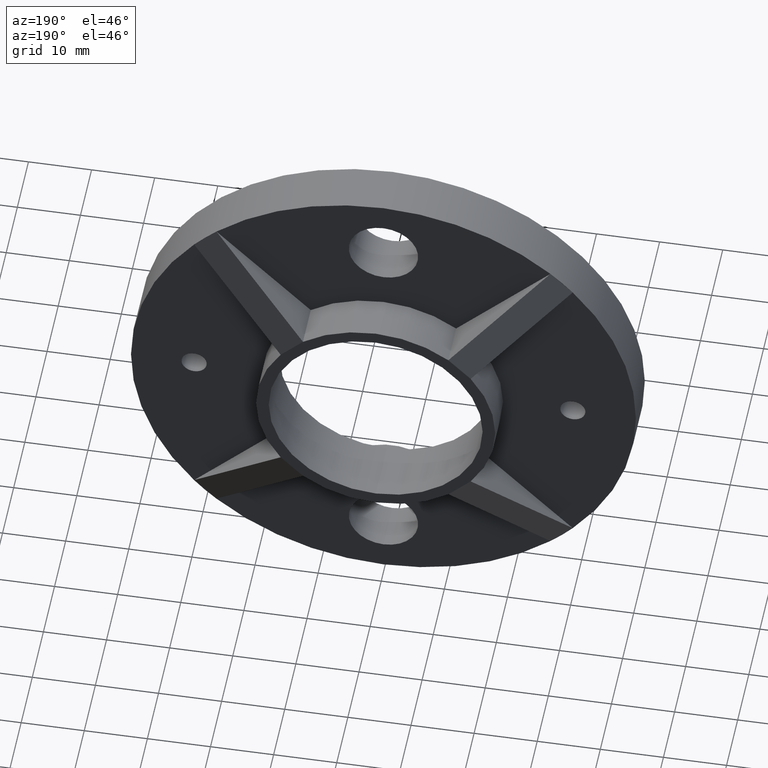
[diagram: clean part render]
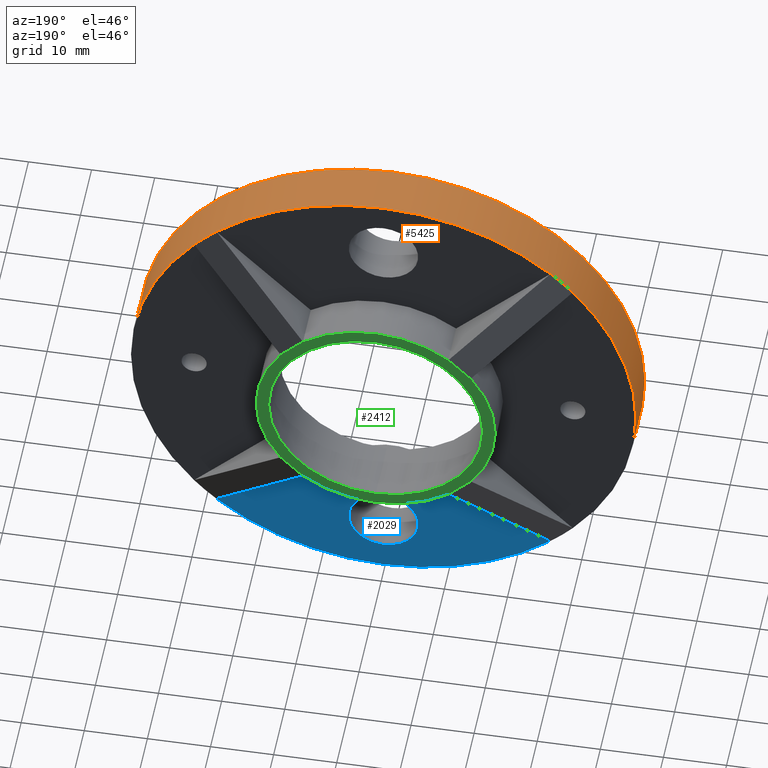
[diagram: same view with three faces highlighted in distinct colors, each labeled with its STEP entity id]
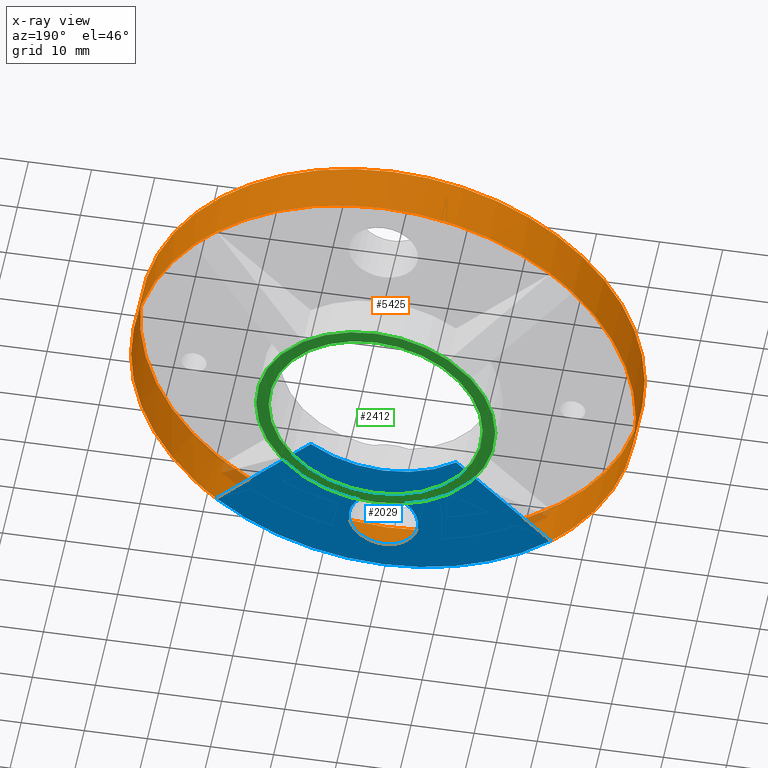
[diagram: x-ray of the same camera — body ghosted, the three highlighted faces saturated]
A machine part, auxiliary view with three faces highlighted in distinct colors.
The next image is the same camera in x-ray (body ghosted, the three faces saturated) — at least one of them is partly hidden behind the body in this view.
Their STEP definitions:

[orange] entity #5425 — the highlighted cylindrical surface (bore or boss wall) has radius 40 mm, axis along (-0, -1, -0).
#100 = CIRCLE ( 'NONE', #11590, 40.00000000000000000 ) ;
#220 = ORIENTED_EDGE ( 'NONE', *, *, #2755, .F. ) ;
#299 = CIRCLE ( 'NONE', #854, 40.00000000000000000 ) ;
#854 = AXIS2_PLACEMENT_3D ( 'NONE', #8414, #2530, #9510 ) ;
#877 = VERTEX_POINT ( 'NONE', #3703 ) ;
#975 = CARTESIAN_POINT ( 'NONE',  ( 0.000000000000000000, 8.000000000000000000, 0.000000000000000000 ) ) ;
#1010 = VERTEX_POINT ( 'NONE', #6023 ) ;
#1297 = CARTESIAN_POINT ( 'NONE',  ( 29.99674142955686307, 8.000000000000000000, -26.46120752362421769 ) ) ;
#1462 = VERTEX_POINT ( 'NONE', #3976 ) ;
#1779 = EDGE_CURVE ( 'NONE', #1908, #1908, #299, .T. ) ;
#1881 = EDGE_CURVE ( 'NONE', #2505, #8396, #2156, .T. ) ;
#1908 = VERTEX_POINT ( 'NONE', #9143 ) ;
#2156 =( BOUNDED_CURVE ( )  B_SPLINE_CURVE ( 3, ( #2717, #3768, #3683, #2835 ),
 .UNSPECIFIED., .F., .T. ) 
 B_SPLINE_CURVE_WITH_KNOTS ( ( 4, 4 ),
 ( 3.079051891793301188, 3.204133415386284600 ),
 .UNSPECIFIED. ) 
 CURVE ( )  GEOMETRIC_REPRESENTATION_ITEM ( )  RATIONAL_B_SPLINE_CURVE ( ( 1.000000000000000000, 0.9986966426113046413, 0.9986966426113046413, 1.000000000000000000 ) ) 
 REPRESENTATION_ITEM ( '' )  );
#2331 = CARTESIAN_POINT ( 'NONE',  ( -26.46120752362419637, 8.000000000000000000, 29.99674142955685952 ) ) ;
#2505 = VERTEX_POINT ( 'NONE', #7922 ) ;
#2530 = DIRECTION ( 'NONE',  ( 0.000000000000000000, 1.000000000000000000, 0.000000000000000000 ) ) ;
#2534 = ORIENTED_EDGE ( 'NONE', *, *, #1881, .T. ) ;
#2717 = CARTESIAN_POINT ( 'NONE',  ( 29.99674142955688438, 8.000000000000000000, 26.46120752362420703 ) ) ;
#2755 = EDGE_CURVE ( 'NONE', #2505, #6810, #10702, .T. ) ;
#2835 = CARTESIAN_POINT ( 'NONE',  ( 26.46120752362411466, 8.000000000000000000, 29.99674142955695544 ) ) ;
#2977 = AXIS2_PLACEMENT_3D ( 'NONE', #975, #5722, #6765 ) ;
#3145 = AXIS2_PLACEMENT_3D ( 'NONE', #10557, #10464, #9385 ) ;
#3371 = CARTESIAN_POINT ( 'NONE',  ( -28.89275222358375927, 8.027616196780574143, 27.71270289559584654 ) ) ;
#3372 = CARTESIAN_POINT ( 'NONE',  ( -29.99674142955688438, 8.000000000000000000, -26.46120752362420347 ) ) ;
#3683 = CARTESIAN_POINT ( 'NONE',  ( 27.71270289559563693, 8.027616196780570590, 28.89275222358396178 ) ) ;
#3703 = CARTESIAN_POINT ( 'NONE',  ( -26.46120752362411466, 8.000000000000000000, -29.99674142955695544 ) ) ;
#3768 = CARTESIAN_POINT ( 'NONE',  ( 28.89275222358388007, 8.027616196780570590, 27.71270289559572220 ) ) ;
#3976 = CARTESIAN_POINT ( 'NONE',  ( -29.99674142955667833, 8.000000000000000000, 26.46120752362442730 ) ) ;
#4112 = EDGE_CURVE ( 'NONE', #1010, #6810, #12604, .T. ) ;
#4175 = CARTESIAN_POINT ( 'NONE',  ( -28.89275222358388007, 8.027616196780570590, -27.71270289559572220 ) ) ;
#4224 = CARTESIAN_POINT ( 'NONE',  ( -27.71270289559563693, 8.027616196780570590, -28.89275222358396178 ) ) ;
#4364 = EDGE_LOOP ( 'NONE', ( #8021, #4639, #9854, #6468, #4366, #5451, #220, #2534 ) ) ;
#4366 = ORIENTED_EDGE ( 'NONE', *, *, #7232, .F. ) ;
#4420 =( BOUNDED_CURVE ( )  B_SPLINE_CURVE ( 3, ( #3372, #4175, #4224, #11083 ),
 .UNSPECIFIED., .F., .T. ) 
 B_SPLINE_CURVE_WITH_KNOTS ( ( 4, 4 ),
 ( 3.079051891793301188, 3.204133415386284600 ),
 .UNSPECIFIED. ) 
 CURVE ( )  GEOMETRIC_REPRESENTATION_ITEM ( )  RATIONAL_B_SPLINE_CURVE ( ( 1.000000000000000000, 0.9986966426113046413, 0.9986966426113046413, 1.000000000000000000 ) ) 
 REPRESENTATION_ITEM ( '' )  );
#4639 = ORIENTED_EDGE ( 'NONE', *, *, #7504, .T. ) ;
#5299 = FACE_OUTER_BOUND ( 'NONE', #4364, .T. ) ;
#5363 =( BOUNDED_CURVE ( )  B_SPLINE_CURVE ( 3, ( #12141, #9292, #3371, #12100 ),
 .UNSPECIFIED., .F., .F. ) 
 B_SPLINE_CURVE_WITH_KNOTS ( ( 4, 4 ),
 ( 3.079051891793311402, 3.204133415386284156 ),
 .UNSPECIFIED. ) 
 CURVE ( )  GEOMETRIC_REPRESENTATION_ITEM ( )  RATIONAL_B_SPLINE_CURVE ( ( 1.000000000000000000, 0.9986966426113048634, 0.9986966426113048634, 1.000000000000000000 ) ) 
 REPRESENTATION_ITEM ( '' )  );
#5425 = ADVANCED_FACE ( 'NONE', ( #5299, #12679 ), #7489, .T. ) ;
#5451 = ORIENTED_EDGE ( 'NONE', *, *, #4112, .T. ) ;
#5456 = CARTESIAN_POINT ( 'NONE',  ( 0.000000000000000000, 8.000000000000000000, 0.000000000000000000 ) ) ;
#5722 = DIRECTION ( 'NONE',  ( -0.000000000000000000, -1.000000000000000000, -0.000000000000000000 ) ) ;
#5992 = AXIS2_PLACEMENT_3D ( 'NONE', #5456, #10351, #6357 ) ;
#6023 = CARTESIAN_POINT ( 'NONE',  ( 26.46120752362420347, 8.000000000000000000, -29.99674142955687373 ) ) ;
#6125 = DIRECTION ( 'NONE',  ( 0.000000000000000000, 1.000000000000000000, 0.000000000000000000 ) ) ;
#6356 = DIRECTION ( 'NONE',  ( 0.000000000000000000, 0.000000000000000000, 1.000000000000000000 ) ) ;
#6357 = DIRECTION ( 'NONE',  ( 0.000000000000000000, 0.000000000000000000, 1.000000000000000000 ) ) ;
#6468 = ORIENTED_EDGE ( 'NONE', *, *, #11245, .T. ) ;
#6552 = VERTEX_POINT ( 'NONE', #2331 ) ;
#6734 = EDGE_CURVE ( 'NONE', #6552, #8396, #100, .T. ) ;
#6765 = DIRECTION ( 'NONE',  ( 0.000000000000000000, 0.000000000000000000, -1.000000000000000000 ) ) ;
#6810 = VERTEX_POINT ( 'NONE', #7916 ) ;
#7232 = EDGE_CURVE ( 'NONE', #1010, #877, #7914, .T. ) ;
#7271 = CIRCLE ( 'NONE', #5992, 40.00000000000000000 ) ;
#7351 = DIRECTION ( 'NONE',  ( 0.000000000000000000, 1.000000000000000000, 0.000000000000000000 ) ) ;
#7489 = CYLINDRICAL_SURFACE ( 'NONE', #2977, 40.00000000000000000 ) ;
#7504 = EDGE_CURVE ( 'NONE', #6552, #1462, #5363, .T. ) ;
#7868 = CARTESIAN_POINT ( 'NONE',  ( 26.46120752362411466, 8.000000000000000000, 29.99674142955695544 ) ) ;
#7914 = CIRCLE ( 'NONE', #3145, 40.00000000000000000 ) ;
#7916 = CARTESIAN_POINT ( 'NONE',  ( 29.99674142955686307, 8.000000000000000000, -26.46120752362421769 ) ) ;
#7922 = CARTESIAN_POINT ( 'NONE',  ( 29.99674142955688438, 8.000000000000000000, 26.46120752362420703 ) ) ;
#7957 = CARTESIAN_POINT ( 'NONE',  ( 27.71270289559568312, 8.027616196780574143, -28.89275222358391915 ) ) ;
#8009 = EDGE_CURVE ( 'NONE', #9907, #1462, #7271, .T. ) ;
#8021 = ORIENTED_EDGE ( 'NONE', *, *, #6734, .F. ) ;
#8348 = CARTESIAN_POINT ( 'NONE',  ( 0.000000000000000000, 8.000000000000000000, 0.000000000000000000 ) ) ;
#8396 = VERTEX_POINT ( 'NONE', #7868 ) ;
#8414 = CARTESIAN_POINT ( 'NONE',  ( 0.000000000000000000, 0.000000000000000000, 0.000000000000000000 ) ) ;
#8747 = CARTESIAN_POINT ( 'NONE',  ( -29.99674142955688438, 8.000000000000000000, -26.46120752362420347 ) ) ;
#8970 = AXIS2_PLACEMENT_3D ( 'NONE', #11987, #6125, #10247 ) ;
#9143 = CARTESIAN_POINT ( 'NONE',  ( 0.000000000000000000, 0.000000000000000000, 40.00000000000000000 ) ) ;
#9292 = CARTESIAN_POINT ( 'NONE',  ( -27.71270289559561206, 8.027616196780575919, 28.89275222358398665 ) ) ;
#9385 = DIRECTION ( 'NONE',  ( 0.000000000000000000, 0.000000000000000000, 1.000000000000000000 ) ) ;
#9510 = DIRECTION ( 'NONE',  ( 0.000000000000000000, 0.000000000000000000, 1.000000000000000000 ) ) ;
#9733 = EDGE_LOOP ( 'NONE', ( #10171 ) ) ;
#9854 = ORIENTED_EDGE ( 'NONE', *, *, #8009, .F. ) ;
#9907 = VERTEX_POINT ( 'NONE', #8747 ) ;
#10171 = ORIENTED_EDGE ( 'NONE', *, *, #1779, .T. ) ;
#10247 = DIRECTION ( 'NONE',  ( 0.000000000000000000, 0.000000000000000000, 1.000000000000000000 ) ) ;
#10351 = DIRECTION ( 'NONE',  ( 0.000000000000000000, 1.000000000000000000, 0.000000000000000000 ) ) ;
#10464 = DIRECTION ( 'NONE',  ( 0.000000000000000000, 1.000000000000000000, 0.000000000000000000 ) ) ;
#10557 = CARTESIAN_POINT ( 'NONE',  ( 0.000000000000000000, 8.000000000000000000, 0.000000000000000000 ) ) ;
#10702 = CIRCLE ( 'NONE', #8970, 40.00000000000000000 ) ;
#10989 = CARTESIAN_POINT ( 'NONE',  ( 28.89275222358389428, 8.027616196780572366, -27.71270289559571154 ) ) ;
#11083 = CARTESIAN_POINT ( 'NONE',  ( -26.46120752362411466, 8.000000000000000000, -29.99674142955695544 ) ) ;
#11245 = EDGE_CURVE ( 'NONE', #9907, #877, #4420, .T. ) ;
#11590 = AXIS2_PLACEMENT_3D ( 'NONE', #8348, #7351, #6356 ) ;
#11787 = CARTESIAN_POINT ( 'NONE',  ( 26.46120752362420347, 8.000000000000000000, -29.99674142955687373 ) ) ;
#11987 = CARTESIAN_POINT ( 'NONE',  ( 0.000000000000000000, 8.000000000000000000, 0.000000000000000000 ) ) ;
#12100 = CARTESIAN_POINT ( 'NONE',  ( -29.99674142955667833, 8.000000000000000000, 26.46120752362442730 ) ) ;
#12141 = CARTESIAN_POINT ( 'NONE',  ( -26.46120752362419637, 8.000000000000000000, 29.99674142955685952 ) ) ;
#12604 =( BOUNDED_CURVE ( )  B_SPLINE_CURVE ( 3, ( #11787, #7957, #10989, #1297 ),
 .UNSPECIFIED., .F., .T. ) 
 B_SPLINE_CURVE_WITH_KNOTS ( ( 4, 4 ),
 ( 3.079051891793304296, 3.204133415386284156 ),
 .UNSPECIFIED. ) 
 CURVE ( )  GEOMETRIC_REPRESENTATION_ITEM ( )  RATIONAL_B_SPLINE_CURVE ( ( 1.000000000000000000, 0.9986966426113046413, 0.9986966426113046413, 1.000000000000000000 ) ) 
 REPRESENTATION_ITEM ( '' )  );
#12679 = FACE_OUTER_BOUND ( 'NONE', #9733, .T. ) ;

[blue] entity #2029 — the highlighted planar face has unit normal (0, 1, 0).
#287 = FACE_BOUND ( 'NONE', #9694, .T. ) ;
#688 = AXIS2_PLACEMENT_3D ( 'NONE', #11972, #11856, #10919 ) ;
#824 = DIRECTION ( 'NONE',  ( 0.000000000000000000, -0.000000000000000000, 1.000000000000000000 ) ) ;
#877 = VERTEX_POINT ( 'NONE', #3703 ) ;
#1010 = VERTEX_POINT ( 'NONE', #6023 ) ;
#1079 = DIRECTION ( 'NONE',  ( 0.000000000000000000, 1.000000000000000000, -0.000000000000000000 ) ) ;
#1440 = DIRECTION ( 'NONE',  ( -0.7071067811865465735, 0.000000000000000000, -0.7071067811865483499 ) ) ;
#1443 = ORIENTED_EDGE ( 'NONE', *, *, #7232, .T. ) ;
#1524 = EDGE_CURVE ( 'NONE', #12620, #12620, #7362, .T. ) ;
#1812 = LINE ( 'NONE', #10745, #10680 ) ;
#1922 = AXIS2_PLACEMENT_3D ( 'NONE', #4715, #6643, #824 ) ;
#2029 = ADVANCED_FACE ( 'NONE', ( #287, #8283 ), #8675, .T. ) ;
#2250 = CARTESIAN_POINT ( 'NONE',  ( 11.51478739474855040, 8.000000000000000000, -15.05032130068124907 ) ) ;
#2299 = EDGE_CURVE ( 'NONE', #6353, #877, #2606, .T. ) ;
#2606 = LINE ( 'NONE', #7259, #10088 ) ;
#2660 = EDGE_LOOP ( 'NONE', ( #10759, #10211, #1443, #10485 ) ) ;
#3145 = AXIS2_PLACEMENT_3D ( 'NONE', #10557, #10464, #9385 ) ;
#3703 = CARTESIAN_POINT ( 'NONE',  ( -26.46120752362411466, 8.000000000000000000, -29.99674142955695544 ) ) ;
#3773 = CIRCLE ( 'NONE', #688, 18.95000000000000284 ) ;
#4715 = CARTESIAN_POINT ( 'NONE',  ( 0.000000000000000000, 8.000000000000000000, 0.000000000000000000 ) ) ;
#5010 = CARTESIAN_POINT ( 'NONE',  ( 0.000000000000000000, 8.000000000000000000, -30.00000000000000000 ) ) ;
#6023 = CARTESIAN_POINT ( 'NONE',  ( 26.46120752362420347, 8.000000000000000000, -29.99674142955687373 ) ) ;
#6353 = VERTEX_POINT ( 'NONE', #9484 ) ;
#6643 = DIRECTION ( 'NONE',  ( 0.000000000000000000, 1.000000000000000000, 0.000000000000000000 ) ) ;
#6823 = DIRECTION ( 'NONE',  ( -0.7071067811865482389, -0.000000000000000000, 0.7071067811865469066 ) ) ;
#7232 = EDGE_CURVE ( 'NONE', #1010, #877, #7914, .T. ) ;
#7259 = CARTESIAN_POINT ( 'NONE',  ( -11.51478739474850777, 8.000000000000000000, -15.05032130068127927 ) ) ;
#7362 = CIRCLE ( 'NONE', #9631, 5.499999999999998224 ) ;
#7914 = CIRCLE ( 'NONE', #3145, 40.00000000000000000 ) ;
#8164 = CARTESIAN_POINT ( 'NONE',  ( 0.000000000000000000, 8.000000000000000000, -35.50000000000000000 ) ) ;
#8283 = FACE_OUTER_BOUND ( 'NONE', #2660, .T. ) ;
#8472 = VERTEX_POINT ( 'NONE', #2250 ) ;
#8675 = PLANE ( 'NONE',  #1922 ) ;
#9305 = EDGE_CURVE ( 'NONE', #1010, #8472, #1812, .T. ) ;
#9385 = DIRECTION ( 'NONE',  ( 0.000000000000000000, 0.000000000000000000, 1.000000000000000000 ) ) ;
#9484 = CARTESIAN_POINT ( 'NONE',  ( -11.51478739474850777, 8.000000000000000000, -15.05032130068127927 ) ) ;
#9631 = AXIS2_PLACEMENT_3D ( 'NONE', #5010, #1079, #10009 ) ;
#9694 = EDGE_LOOP ( 'NONE', ( #9978 ) ) ;
#9978 = ORIENTED_EDGE ( 'NONE', *, *, #1524, .F. ) ;
#10009 = DIRECTION ( 'NONE',  ( 0.000000000000000000, 0.000000000000000000, -1.000000000000000000 ) ) ;
#10088 = VECTOR ( 'NONE', #1440, 1000.000000000000114 ) ;
#10211 = ORIENTED_EDGE ( 'NONE', *, *, #9305, .F. ) ;
#10464 = DIRECTION ( 'NONE',  ( 0.000000000000000000, 1.000000000000000000, 0.000000000000000000 ) ) ;
#10485 = ORIENTED_EDGE ( 'NONE', *, *, #2299, .F. ) ;
#10557 = CARTESIAN_POINT ( 'NONE',  ( 0.000000000000000000, 8.000000000000000000, 0.000000000000000000 ) ) ;
#10680 = VECTOR ( 'NONE', #6823, 1000.000000000000000 ) ;
#10745 = CARTESIAN_POINT ( 'NONE',  ( 11.51478739474855040, 8.000000000000000000, -15.05032130068124907 ) ) ;
#10759 = ORIENTED_EDGE ( 'NONE', *, *, #11139, .F. ) ;
#10919 = DIRECTION ( 'NONE',  ( 0.000000000000000000, 0.000000000000000000, 1.000000000000000000 ) ) ;
#11139 = EDGE_CURVE ( 'NONE', #8472, #6353, #3773, .T. ) ;
#11856 = DIRECTION ( 'NONE',  ( 0.000000000000000000, 1.000000000000000000, 0.000000000000000000 ) ) ;
#11972 = CARTESIAN_POINT ( 'NONE',  ( 0.000000000000000000, 8.000000000000000000, 0.000000000000000000 ) ) ;
#12620 = VERTEX_POINT ( 'NONE', #8164 ) ;

[green] entity #2412 — the highlighted planar face has unit normal (0, 1, 0).
#54 = CARTESIAN_POINT ( 'NONE',  ( -53.28255434771494947, 15.00000000000000000, 26.71744565228500434 ) ) ;
#659 = DIRECTION ( 'NONE',  ( -0.7071067811865489050, -0.000000000000000000, 0.7071067811865462405 ) ) ;
#939 = VERTEX_POINT ( 'NONE', #4102 ) ;
#1221 = CARTESIAN_POINT ( 'NONE',  ( 0.000000000000000000, 15.00000000000000000, 0.000000000000000000 ) ) ;
#1313 = VECTOR ( 'NONE', #659, 1000.000000000000000 ) ;
#1692 = ORIENTED_EDGE ( 'NONE', *, *, #10732, .F. ) ;
#1772 = DIRECTION ( 'NONE',  ( 0.7071067811865486830, -0.000000000000000000, 0.7071067811865464625 ) ) ;
#2070 = VECTOR ( 'NONE', #6320, 999.9999999999998863 ) ;
#2208 = DIRECTION ( 'NONE',  ( 0.000000000000000000, 1.000000000000000000, 0.000000000000000000 ) ) ;
#2283 = FACE_BOUND ( 'NONE', #5710, .T. ) ;
#2370 = CARTESIAN_POINT ( 'NONE',  ( 0.000000000000000000, 15.00000000000000000, 16.94999999999999929 ) ) ;
#2379 = CARTESIAN_POINT ( 'NONE',  ( 0.000000000000000000, 15.00000000000000000, 0.000000000000000000 ) ) ;
#2412 = ADVANCED_FACE ( 'NONE', ( #7518, #2283 ), #8261, .T. ) ;
#2525 = CARTESIAN_POINT ( 'NONE',  ( 0.000000000000000000, 15.00000000000000000, 0.000000000000000000 ) ) ;
#2707 = VECTOR ( 'NONE', #1772, 999.9999999999998863 ) ;
#3111 = CARTESIAN_POINT ( 'NONE',  ( 0.000000000000000000, 15.00000000000000000, 0.000000000000000000 ) ) ;
#3194 = CIRCLE ( 'NONE', #8495, 18.95000000000000284 ) ;
#3267 = ORIENTED_EDGE ( 'NONE', *, *, #5288, .T. ) ;
#3387 = ORIENTED_EDGE ( 'NONE', *, *, #4198, .T. ) ;
#3499 = DIRECTION ( 'NONE',  ( 0.000000000000000000, 1.000000000000000000, 0.000000000000000000 ) ) ;
#3567 = EDGE_LOOP ( 'NONE', ( #1692, #3387, #9452, #7205, #6164, #3267, #3730, #11669 ) ) ;
#3644 = AXIS2_PLACEMENT_3D ( 'NONE', #8388, #7341, #7428 ) ;
#3728 = EDGE_CURVE ( 'NONE', #7713, #11435, #3194, .T. ) ;
#3730 = ORIENTED_EDGE ( 'NONE', *, *, #10364, .F. ) ;
#3956 = CARTESIAN_POINT ( 'NONE',  ( 0.000000000000000000, 15.00000000000000000, 0.000000000000000000 ) ) ;
#4012 = VERTEX_POINT ( 'NONE', #11752 ) ;
#4102 = CARTESIAN_POINT ( 'NONE',  ( 15.05032130068127927, 15.00000000000000000, -11.51478739474850954 ) ) ;
#4106 = CARTESIAN_POINT ( 'NONE',  ( 11.51478739474854862, 15.00000000000000178, -15.05032130068124374 ) ) ;
#4198 = EDGE_CURVE ( 'NONE', #10457, #4012, #8596, .T. ) ;
#4361 = VECTOR ( 'NONE', #8884, 1000.000000000000000 ) ;
#4532 = LINE ( 'NONE', #9392, #1313 ) ;
#4563 = DIRECTION ( 'NONE',  ( 0.000000000000000000, -0.000000000000000000, 1.000000000000000000 ) ) ;
#5118 = CIRCLE ( 'NONE', #8155, 18.95000000000000284 ) ;
#5165 = AXIS2_PLACEMENT_3D ( 'NONE', #3956, #11709, #10854 ) ;
#5251 = VERTEX_POINT ( 'NONE', #2370 ) ;
#5288 = EDGE_CURVE ( 'NONE', #10504, #10905, #7797, .T. ) ;
#5346 = ORIENTED_EDGE ( 'NONE', *, *, #9862, .F. ) ;
#5420 = CARTESIAN_POINT ( 'NONE',  ( 26.71744565228556567, 15.00000000000000000, 53.28255434771467236 ) ) ;
#5710 = EDGE_LOOP ( 'NONE', ( #5346 ) ) ;
#5903 = LINE ( 'NONE', #12512, #2707 ) ;
#6057 = DIRECTION ( 'NONE',  ( 0.000000000000000000, 1.000000000000000000, 0.000000000000000000 ) ) ;
#6080 = AXIS2_PLACEMENT_3D ( 'NONE', #2379, #9269, #4563 ) ;
#6151 = CARTESIAN_POINT ( 'NONE',  ( -11.51478739474853441, 15.00000000000000355, 15.05032130068123308 ) ) ;
#6164 = ORIENTED_EDGE ( 'NONE', *, *, #11457, .F. ) ;
#6320 = DIRECTION ( 'NONE',  ( -0.7071067811865536790, -0.000000000000000000, -0.7071067811865414665 ) ) ;
#6900 = DIRECTION ( 'NONE',  ( 0.000000000000000000, 0.000000000000000000, 1.000000000000000000 ) ) ;
#7205 = ORIENTED_EDGE ( 'NONE', *, *, #7802, .T. ) ;
#7341 = DIRECTION ( 'NONE',  ( 0.000000000000000000, 1.000000000000000000, 0.000000000000000000 ) ) ;
#7428 = DIRECTION ( 'NONE',  ( 0.000000000000000000, 0.000000000000000000, 1.000000000000000000 ) ) ;
#7518 = FACE_OUTER_BOUND ( 'NONE', #3567, .T. ) ;
#7617 = CARTESIAN_POINT ( 'NONE',  ( -11.51478739474850777, 15.00000000000000000, -15.05032130068127927 ) ) ;
#7644 = CARTESIAN_POINT ( 'NONE',  ( -15.05032130068128282, 15.00000000000000000, 11.51478739474850777 ) ) ;
#7713 = VERTEX_POINT ( 'NONE', #11643 ) ;
#7797 = CIRCLE ( 'NONE', #8070, 18.95000000000000284 ) ;
#7802 = EDGE_CURVE ( 'NONE', #11512, #939, #5118, .T. ) ;
#8070 = AXIS2_PLACEMENT_3D ( 'NONE', #2525, #3499, #10361 ) ;
#8155 = AXIS2_PLACEMENT_3D ( 'NONE', #3111, #6057, #6900 ) ;
#8261 = PLANE ( 'NONE',  #6080 ) ;
#8388 = CARTESIAN_POINT ( 'NONE',  ( 0.000000000000000000, 15.00000000000000000, 0.000000000000000000 ) ) ;
#8495 = AXIS2_PLACEMENT_3D ( 'NONE', #1221, #2208, #9060 ) ;
#8596 = CIRCLE ( 'NONE', #3644, 18.95000000000000284 ) ;
#8884 = DIRECTION ( 'NONE',  ( 0.7071067811865489050, -0.000000000000000000, -0.7071067811865462405 ) ) ;
#8910 = CARTESIAN_POINT ( 'NONE',  ( 15.05032130068125973, 15.00000000000000000, 11.51478739474854329 ) ) ;
#9060 = DIRECTION ( 'NONE',  ( 0.000000000000000000, 0.000000000000000000, 1.000000000000000000 ) ) ;
#9269 = DIRECTION ( 'NONE',  ( 0.000000000000000000, 1.000000000000000000, 0.000000000000000000 ) ) ;
#9392 = CARTESIAN_POINT ( 'NONE',  ( 53.28255434771494947, 15.00000000000000000, -26.71744565228500434 ) ) ;
#9452 = ORIENTED_EDGE ( 'NONE', *, *, #10177, .F. ) ;
#9862 = EDGE_CURVE ( 'NONE', #5251, #5251, #12513, .T. ) ;
#10177 = EDGE_CURVE ( 'NONE', #11512, #4012, #4532, .T. ) ;
#10361 = DIRECTION ( 'NONE',  ( 0.000000000000000000, 0.000000000000000000, 1.000000000000000000 ) ) ;
#10364 = EDGE_CURVE ( 'NONE', #7713, #10905, #12185, .T. ) ;
#10457 = VERTEX_POINT ( 'NONE', #6151 ) ;
#10504 = VERTEX_POINT ( 'NONE', #4106 ) ;
#10732 = EDGE_CURVE ( 'NONE', #10457, #11435, #11106, .T. ) ;
#10854 = DIRECTION ( 'NONE',  ( 0.000000000000000000, 0.000000000000000000, 1.000000000000000000 ) ) ;
#10905 = VERTEX_POINT ( 'NONE', #7617 ) ;
#11106 = LINE ( 'NONE', #5420, #2070 ) ;
#11435 = VERTEX_POINT ( 'NONE', #7644 ) ;
#11457 = EDGE_CURVE ( 'NONE', #10504, #939, #5903, .T. ) ;
#11512 = VERTEX_POINT ( 'NONE', #8910 ) ;
#11643 = CARTESIAN_POINT ( 'NONE',  ( -15.05032130068125973, 15.00000000000000178, -11.51478739474855217 ) ) ;
#11669 = ORIENTED_EDGE ( 'NONE', *, *, #3728, .T. ) ;
#11709 = DIRECTION ( 'NONE',  ( 0.000000000000000000, 1.000000000000000000, 0.000000000000000000 ) ) ;
#11752 = CARTESIAN_POINT ( 'NONE',  ( 11.51478739474850599, 15.00000000000000000, 15.05032130068128282 ) ) ;
#12185 = LINE ( 'NONE', #54, #4361 ) ;
#12512 = CARTESIAN_POINT ( 'NONE',  ( -26.71744565228517843, 15.00000000000000000, -53.28255434771485000 ) ) ;
#12513 = CIRCLE ( 'NONE', #5165, 16.94999999999999929 ) ;